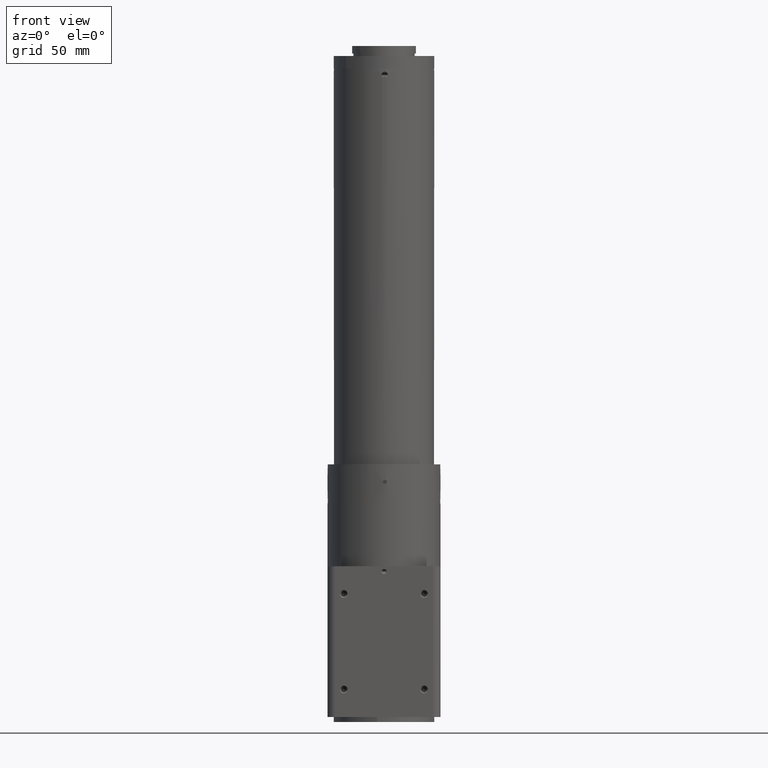
[diagram: clean part render]
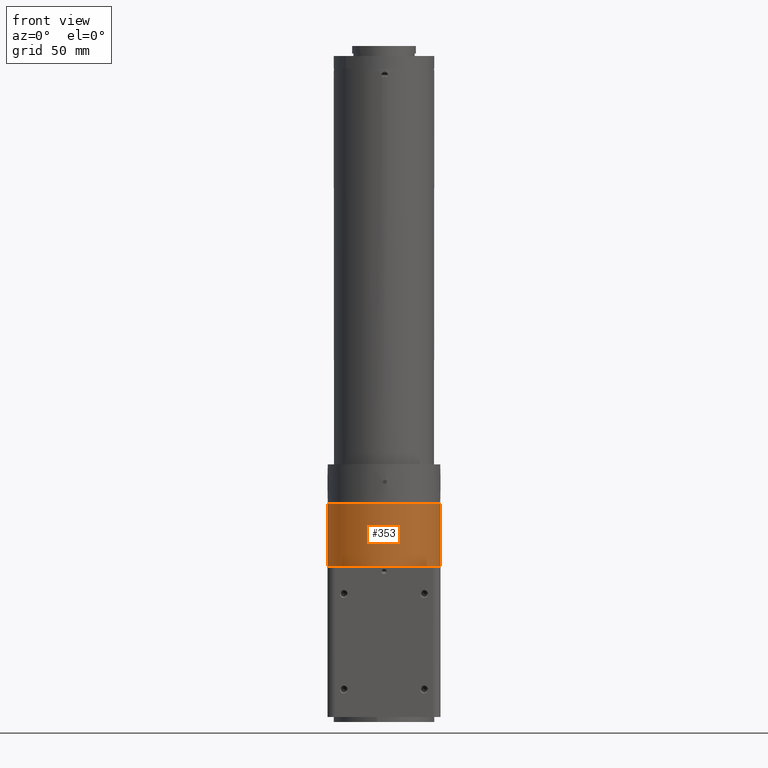
[diagram: same view with one face highlighted and labeled with its STEP entity id]
A machine part, front view. The second image highlights one B-rep face of the part: STEP entity #353.
In plain terms, the highlighted cylindrical surface (bore or boss wall) has radius 22.5 mm, axis along (-0, -0, -1).
Its self-contained STEP definition (entity closure, byte-faithful):
#353 = ADVANCED_FACE ( 'NONE', ( #5900, #1256 ), #6770, .T. ) ;
#834 = DIRECTION ( 'NONE',  ( -0.9995040919334490237, 0.03148920780666750185, 0.000000000000000000 ) ) ;
#989 = EDGE_CURVE ( 'NONE', #4065, #4065, #3870, .T. ) ;
#1256 = FACE_OUTER_BOUND ( 'NONE', #5426, .T. ) ;
#2756 = CIRCLE ( 'NONE', #11445, 22.50000000000000355 ) ;
#3008 = CARTESIAN_POINT ( 'NONE',  ( -22.48884206850259915, 0.7085071756500216367, 84.99999999999998579 ) ) ;
#3265 = VERTEX_POINT ( 'NONE', #3008 ) ;
#3870 = CIRCLE ( 'NONE', #8309, 22.50000000000000355 ) ;
#4065 = VERTEX_POINT ( 'NONE', #7375 ) ;
#4365 = CARTESIAN_POINT ( 'NONE',  ( 6.582841809167385677E-15, 2.761814095638576846E-15, 84.99999999999998579 ) ) ;
#4709 = EDGE_LOOP ( 'NONE', ( #9690 ) ) ;
#5426 = EDGE_LOOP ( 'NONE', ( #9668 ) ) ;
#5900 = FACE_OUTER_BOUND ( 'NONE', #4709, .T. ) ;
#6006 = DIRECTION ( 'NONE',  ( -1.110223024625164922E-16, -2.775557561562944969E-17, -1.000000000000000000 ) ) ;
#6770 = CYLINDRICAL_SURFACE ( 'NONE', #10897, 22.50000000000000355 ) ;
#7375 = CARTESIAN_POINT ( 'NONE',  ( -22.48884206850260270, 0.7085071756500209705, 59.99999999999999289 ) ) ;
#7471 = CARTESIAN_POINT ( 'NONE',  ( -2.574965950590985649E-16, 1.051729494581935793E-15, 23.38770902327547674 ) ) ;
#7578 = DIRECTION ( 'NONE',  ( -0.9995040919334490237, 0.03148920780666750185, 1.541976423090494894E-16 ) ) ;
#7895 = DIRECTION ( 'NONE',  ( -0.9995040919334490237, 0.03148920780666750185, 0.000000000000000000 ) ) ;
#8309 = AXIS2_PLACEMENT_3D ( 'NONE', #11330, #10515, #834 ) ;
#9643 = EDGE_CURVE ( 'NONE', #3265, #3265, #2756, .T. ) ;
#9668 = ORIENTED_EDGE ( 'NONE', *, *, #9643, .T. ) ;
#9690 = ORIENTED_EDGE ( 'NONE', *, *, #989, .T. ) ;
#10515 = DIRECTION ( 'NONE',  ( 1.110223024625164922E-16, 2.775557561562944969E-17, 1.000000000000000000 ) ) ;
#10897 = AXIS2_PLACEMENT_3D ( 'NONE', #7471, #11000, #7578 ) ;
#11000 = DIRECTION ( 'NONE',  ( -1.110223024625164922E-16, -2.775557561562944969E-17, -1.000000000000000000 ) ) ;
#11330 = CARTESIAN_POINT ( 'NONE',  ( 3.807284247604473815E-15, 2.067924705247840992E-15, 59.99999999999999289 ) ) ;
#11445 = AXIS2_PLACEMENT_3D ( 'NONE', #4365, #6006, #7895 ) ;